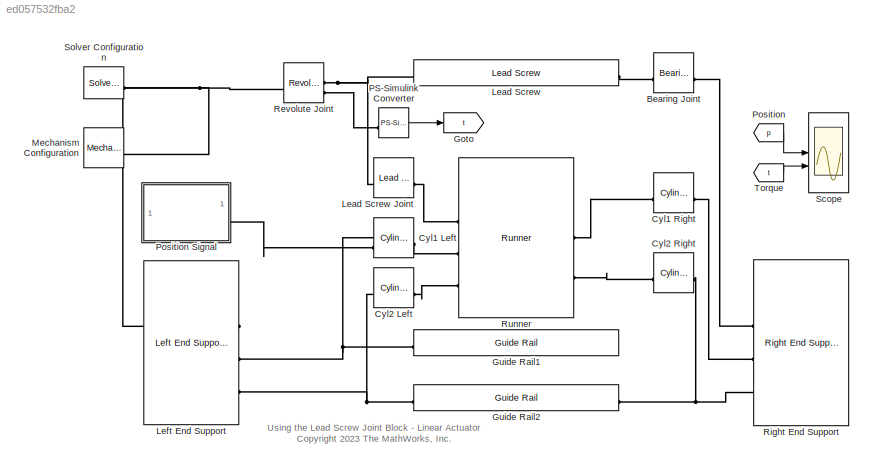
MODEL slx_ed057532fba2
KIND model
CONFIG AbsTol = auto
CONFIG EnableMultiTasking = on
CONFIG FixedStep = auto
CONFIG MaxStep = 0.01
CONFIG MinStep = auto
CONFIG PreLoadFcn = addpath(fullfile('LeadScrewJointSupport','Scripts'));
CONFIG RelTol = 1e-3
CONFIG SampleTimeConstraint = Unconstrained
CONFIG SolverName = ode45
CONFIG StartTime = 0.0
CONFIG StopTime = 10.0
WORKSPACE source: external: MATLAB File  (data not in archive)
BLOCK [Reference] Bearing Joint  REF=sm_lib/Joints/Bearing Joint
  SourceBlock = sm_lib/Joints/Bearing Joint
  SourceType = Bearing Joint
  StatePerturbationForJacobian = 1.0e-05
BLOCK [Reference] Cyl1 Left  REF=sm_lib/Joints/Cylindrical
Joint
  SourceBlock = sm_lib/Joints/Cylindrical\nJoint
  SourceType = Cylindrical\nJoint
  StatePerturbationForJacobian = 1.0e-05
BLOCK [Reference] Cyl1 Right  REF=sm_lib/Joints/Cylindrical
Joint
  SourceBlock = sm_lib/Joints/Cylindrical\nJoint
  SourceType = Cylindrical\nJoint
  StatePerturbationForJacobian = 1.0e-05
BLOCK [Reference] Cyl2 Left  REF=sm_lib/Joints/Cylindrical
Joint
  SourceBlock = sm_lib/Joints/Cylindrical\nJoint
  SourceType = Cylindrical\nJoint
  StatePerturbationForJacobian = 1.0e-05
BLOCK [Reference] Cyl2 Right  REF=sm_lib/Joints/Cylindrical
Joint
  SourceBlock = sm_lib/Joints/Cylindrical\nJoint
  SourceType = Cylindrical\nJoint
  StatePerturbationForJacobian = 1.0e-05
BLOCK [Goto] Goto
  GotoTag = t
  StatePerturbationForJacobian = 1.0e-05
BLOCK [Reference] Guide Rail1  REF=LeadScrewJointLibrary/Guide Rail
  SourceBlock = LeadScrewJointLibrary/Guide Rail
  SourceType = Guide Rail
  StatePerturbationForJacobian = 1.0e-05
BLOCK [Reference] Guide Rail2  REF=LeadScrewJointLibrary/Guide Rail
  SourceBlock = LeadScrewJointLibrary/Guide Rail
  SourceType = Guide Rail
  StatePerturbationForJacobian = 1.0e-05
BLOCK [Reference] Lead Screw  REF=LeadScrewJointLibrary/Lead Screw
  SourceBlock = LeadScrewJointLibrary/Lead Screw
  SourceType = Lead Screw
  StatePerturbationForJacobian = 1.0e-05
BLOCK [Reference] Lead Screw Joint  REF=sm_lib/Joints/Lead Screw
Joint
  SourceBlock = sm_lib/Joints/Lead Screw\nJoint
  SourceType = Lead Screw\nJoint
  StatePerturbationForJacobian = 1.0e-05
BLOCK [Reference] Left End Support  REF=LeadScrewJointLibrary/Left End Support
  SourceBlock = LeadScrewJointLibrary/Left End Support
  SourceType = Left End Support
  StatePerturbationForJacobian = 1.0e-05
BLOCK [Reference] Mechanism Configuration  REF=sm_lib/Utilities/Mechanism
Configuration
  SourceBlock = sm_lib/Utilities/Mechanism\nConfiguration
  SourceType = Mechanism\nConfiguration
  StatePerturbationForJacobian = 1.0e-05
BLOCK [Reference] PS-Simulink Converter  REF=nesl_utility/PS-Simulink
Converter
  SourceBlock = nesl_utility/PS-Simulink\nConverter
  SourceType = PS-Simulink\nConverter
  StatePerturbationForJacobian = 1.0e-05
BLOCK [From] Position
  GotoTag = p
  StatePerturbationForJacobian = 1.0e-05
  TagVisibility = global
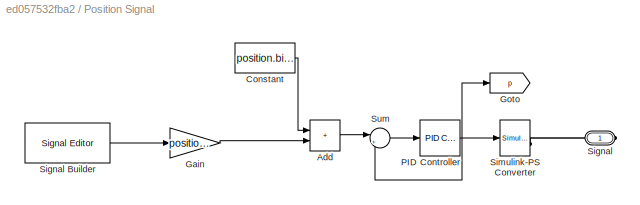
BLOCK [SubSystem] Position Signal
  StatePerturbationForJacobian = 1.0e-05
BLOCK [Sum] Position Signal/Add
  IconShape = rectangular
  StatePerturbationForJacobian = 1.0e-05
BLOCK [Constant] Position Signal/Constant
  StatePerturbationForJacobian = 1.0e-05
  Value = position.bias
BLOCK [Gain] Position Signal/Gain
  Gain = position.amplitude
  StatePerturbationForJacobian = 1.0e-05
BLOCK [Goto] Position Signal/Goto
  GotoTag = p
  StatePerturbationForJacobian = 1.0e-05
  TagVisibility = global
BLOCK [Reference] Position Signal/PID Controller  REF=slpidlib/PID Controller
  LibrarySourceBlock = simulink/Continuous/PID Controller
  SourceBlock = slpidlib/PID Controller
  SourceType = PID 1dof
BLOCK [PMIOPort] Position Signal/Signal
  Side = Right
  StatePerturbationForJacobian = 1.0e-05
BLOCK [Reference] Position Signal/Signal Builder  REF=SignalEditorBlockLib/Signal Editor
  SourceBlock = SignalEditorBlockLib/Signal Editor
  SourceType = SignalEditor
  UserDataPersistent = on
BLOCK [Reference] Position Signal/Simulink-PS Converter  REF=nesl_utility/Simulink-PS
Converter
  SourceBlock = nesl_utility/Simulink-PS\nConverter
  SourceType = Simulink-PS\nConverter
  StatePerturbationForJacobian = 1.0e-05
BLOCK [Sum] Position Signal/Sum
  Inputs = |+-
BLOCK [Reference] Revolute Joint  REF=sm_lib/Joints/Revolute Joint
  SourceBlock = sm_lib/Joints/Revolute Joint
  SourceType = Revolute Joint
  StatePerturbationForJacobian = 1.0e-05
BLOCK [Reference] Right End Support  REF=LeadScrewJointLibrary/Right End Support
  SourceBlock = LeadScrewJointLibrary/Right End Support
  StatePerturbationForJacobian = 1.0e-05
BLOCK [Reference] Runner  REF=LeadScrewJointLibrary/Runner
  SourceBlock = LeadScrewJointLibrary/Runner
  SourceType = Runner
  StatePerturbationForJacobian = 1.0e-05
BLOCK [Scope] Scope
  Floating = off
  NumInputPorts = 2
  ScopeSpecificationString = Simulink.scopes.TimeScopeBlockCfg('CurrentConfiguration', extmgr.ConfigurationSet(extmgr.Configuration('Core','General UI',true),extmgr.Configuration('Core','Source UI',true),extmgr.Configuration('Sources','WiredSimulink',true,'DataLoggingSaveFormat','Array','DataLoggingDecimation','1','DataLoggingDecimateData',true),extmgr.Configuration('Visuals','Time Domain',true,'SerializedDisplays',{struct('M...<+2587ch>
  StatePerturbationForJacobian = 1.0e-05
BLOCK [Reference] Solver Configuration  REF=nesl_utility/Solver
Configuration
  SourceBlock = nesl_utility/Solver\nConfiguration
  SourceType = Solver\nConfiguration
  StatePerturbationForJacobian = 1.0e-05
BLOCK [From] Torque
  GotoTag = t
  StatePerturbationForJacobian = 1.0e-05
ANNOTATION (root): Using the Lead Screw Joint Block - Linear Actuator <copyright redacted>
LINE PS-Simulink Converter:1 -> Goto:1
LINE Position Signal/Add:1 -> Position Signal/Sum:1
LINE Position Signal/Constant:1 -> Position Signal/Add:1
LINE Position Signal/Gain:1 -> Position Signal/Add:2
NET Position Signal/PID Controller:1 -> Position Signal/Goto:1, Position Signal/Simulink-PS Converter:1, Position Signal/Sum:2
LINE Position Signal/Signal Builder:1 -> Position Signal/Gain:1
LINE Position Signal/Sum:1 -> Position Signal/PID Controller:1
LINE Position:1 -> Scope:1
LINE Torque:1 -> Scope:2
PLINE Bearing Joint:LConn1 -- Right End Support:LConn1
PLINE Bearing Joint:RConn1 -- Lead Screw:RConn1
PNET net1: Cyl1 Left:LConn1 -- Guide Rail1:LConn1 -- Left End Support:RConn2
PLINE Cyl1 Left:LConn2 -- Position Signal:RConn1
PLINE Cyl1 Left:RConn1 -- Runner:LConn2
PLINE Cyl1 Right:LConn1 -- Right End Support:LConn2
PLINE Cyl1 Right:RConn1 -- Runner:RConn1
PNET net2: Cyl2 Left:LConn1 -- Guide Rail2:LConn1 -- Left End Support:RConn3
PLINE Cyl2 Left:RConn1 -- Runner:LConn3
PNET net3: Cyl2 Right:LConn1 -- Guide Rail2:RConn1 -- Right End Support:LConn3
PLINE Cyl2 Right:RConn1 -- Runner:RConn2
PNET net4: Lead Screw Joint:LConn1 -- Lead Screw:LConn1 -- Revolute Joint:RConn1
PLINE Lead Screw Joint:RConn1 -- Runner:LConn1
PNET net5: Left End Support:RConn1 -- Mechanism Configuration:RConn1 -- Revolute Joint:LConn1 -- Solver Configuration:RConn1
PLINE PS-Simulink Converter:LConn1 -- Revolute Joint:RConn2
PLINE Position Signal/Signal:RConn1 -- Position Signal/Simulink-PS Converter:RConn1
note: NET lines group one-source signal fan-out (src -> all destinations, sorted); 1:1 wires keep LINE; PNET lines group multi-terminal physical nets as a canonical sorted terminal list (undirected conserving connections); 2-terminal nets keep the pairwise PLINE form
